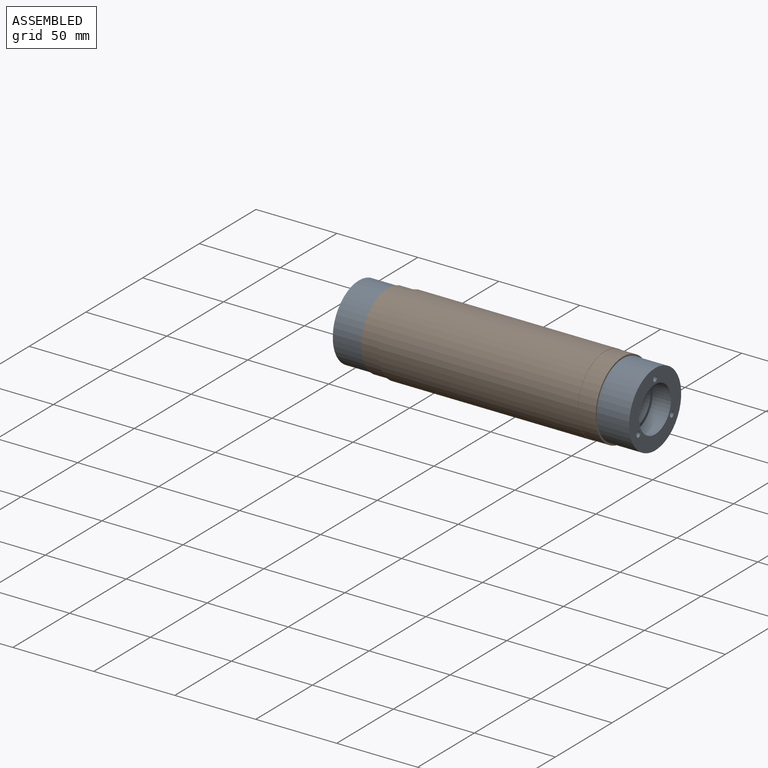
[diagram: assembled view]
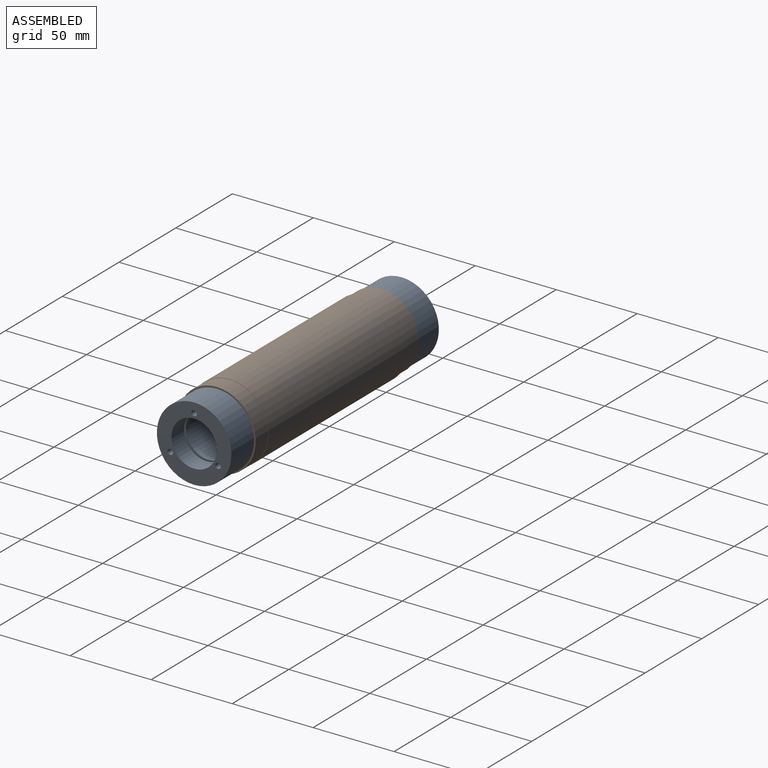
[diagram: assembled view, second angle]
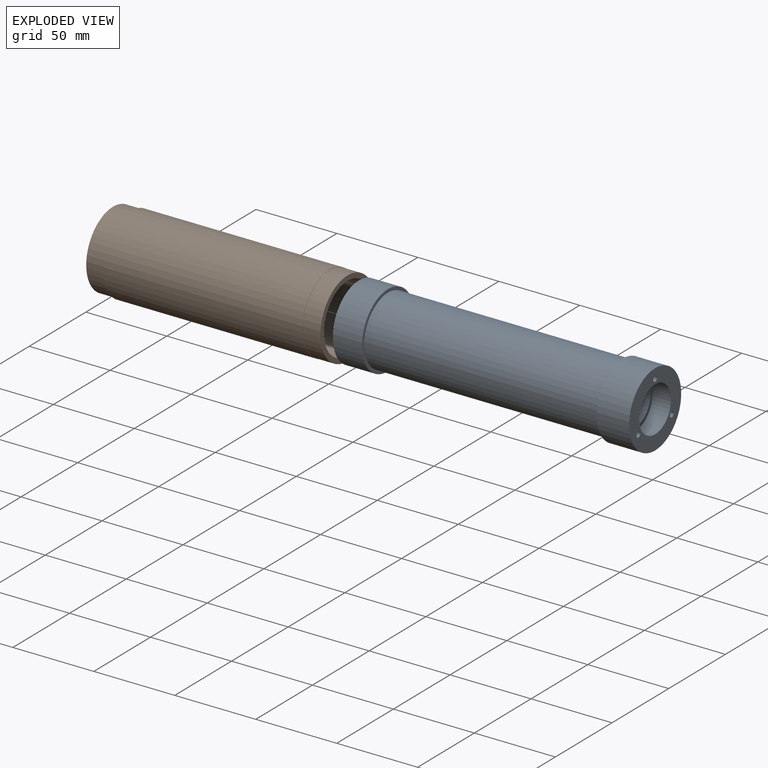
[diagram: exploded view]
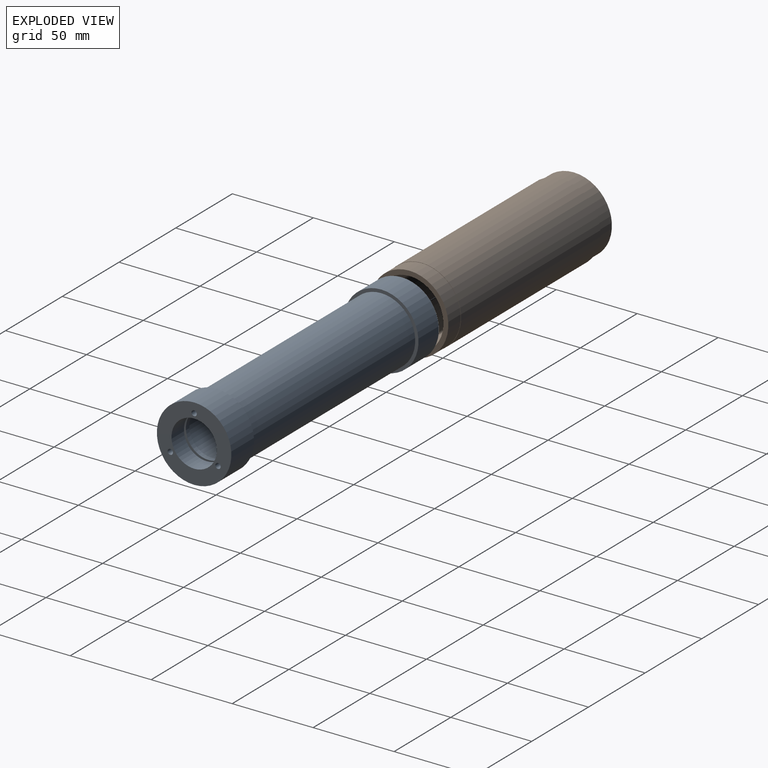
[diagram: exploded view, second angle]
ASSEMBLY  parts=2 mates=2
PART A: 24 faces, bbox 183x46x46 mm
  f0: cylinder r=18.5mm len=37mm, axis (-1,0,0), area 1394.9mm2, adj f1,f17
  f1: plane 37x37mm, normal (-1,0,0), area 113.1mm2, adj f0,f2
  f2: cylinder r=17.5mm len=35mm, axis (-1,0,0), area 219.9mm2, adj f1,f3
  f3: plane 35x35mm, normal (-1,0,0), area 157.9mm2, adj f2,f4
  f4: cylinder r=16mm len=153.3mm, axis (-1,0,0), area 15411.4mm2, adj f3,f5
  f5: plane 32x32mm, normal (-1,0,0), area 188.5mm2, adj f4,f6
  f6: cylinder r=14mm len=28mm, axis (-1,0,0), area 263.9mm2, adj f5,f7
  f7: plane 32x32mm, normal (1,0,0), area 188.5mm2, adj f6,f8
  f8: cylinder r=16mm len=32mm, axis (-1,0,0), area 170.9mm2, adj f7,f9
  f9: plane 32x32mm, normal (-1,0,0), area 188.5mm2, adj f8,f10
  f10: cylinder r=14mm len=28mm, axis (-1,0,0), area 967.6mm2, adj f9,f11
  f11: plane 46x46mm, normal (1,0,0), area 1020.5mm2, adj f10,f12,f19,f21,f23
  f12: cylinder r=23mm len=46mm, axis (-1,0,0), area 2890.3mm2, adj f11,f13
  f13: plane 46x46mm, normal (-1,0,0), area 276.5mm2, adj f12,f14
  f14: cylinder r=21mm len=145mm, axis (-1,0,0), area 19132.3mm2, adj f13,f15
  f15: plane 46x46mm, normal (1,0,0), area 276.5mm2, adj f14,f16
  f16: cylinder r=23mm len=46mm, axis (-1,0,0), area 2601.2mm2, adj f15,f17
  f17: plane 46x46mm, normal (-1,0,0), area 586.7mm2, adj f0,f16
  f18: cone r=0mm half-angle=59deg, axis (1,0,0), area 10mm2, adj f19
  f19: cylinder r=1.65mm len=10mm, axis (1,0,0), area 103.7mm2, adj f11,f18
  f20: cone r=0mm half-angle=59deg, axis (1,0,0), area 10mm2, adj f21
  f21: cylinder r=1.65mm len=10mm, axis (1,0,0), area 103.7mm2, adj f11,f20
  f22: cone r=0mm half-angle=59deg, axis (1,0,0), area 10mm2, adj f23
  f23: cylinder r=1.65mm len=10mm, axis (1,0,0), area 103.7mm2, adj f11,f22
PART B: 8 faces, bbox 145x48.3x48.3 mm
  f0: plane 47x47mm, normal (-1,0,0), area 349.5mm2, adj f1,f7
  f1: cylinder r=21mm len=145mm, axis (-1,0,0), area 19132.3mm2, adj f0,f2
  f2: plane 48x48mm, normal (1,0,0), area 424.1mm2, adj f1,f3
  f3: cylinder r=24mm len=48mm, axis (-1,0,0), area 1658.8mm2, adj f2,f4
  f4: plane 48.3x48.3mm, normal (1,0,0), area 22.7mm2, adj f3,f5
  f5: cylinder r=24.15mm len=123mm, axis (-1,0,0), area 18663.9mm2, adj f4,f6
  f6: plane 48.3x48.3mm, normal (-1,0,0), area 97.3mm2, adj f5,f7
  f7: cylinder r=23.5mm len=47mm, axis (-1,0,0), area 1624.2mm2, adj f0,f6
PLACE A t=(-71.55,14.53,22.82)mm
PLACE B t=(-53.55,14.53,22.82)mm
MATE fastened B.f1 <-> A.f0  axis (1,0,0) through (91.45,14.53,22.82)mm
MATE planar B.f1 <-> A.f0  axis (1,0,0) through (91.45,14.53,22.82)mm
